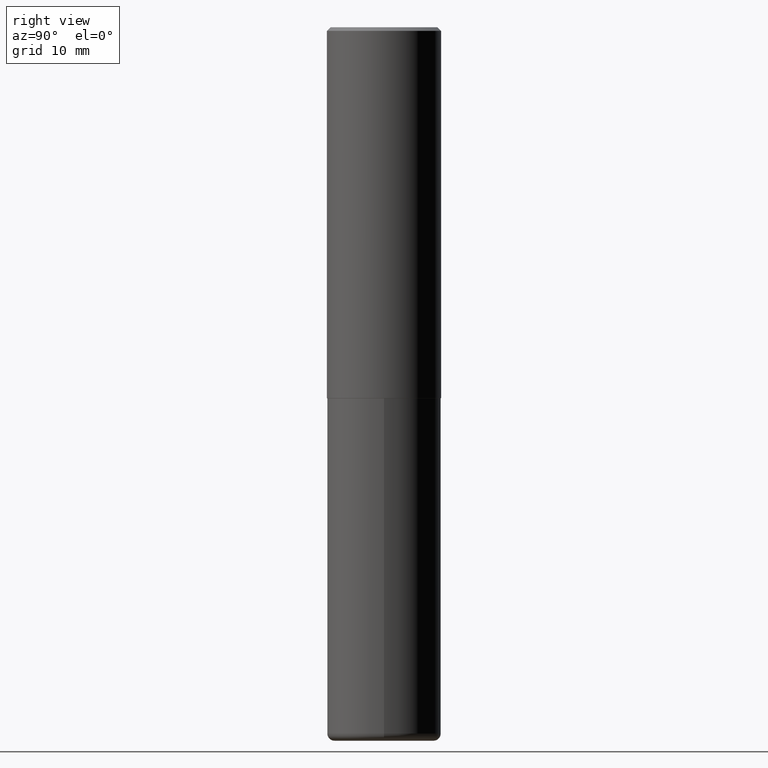
[diagram: clean part render]
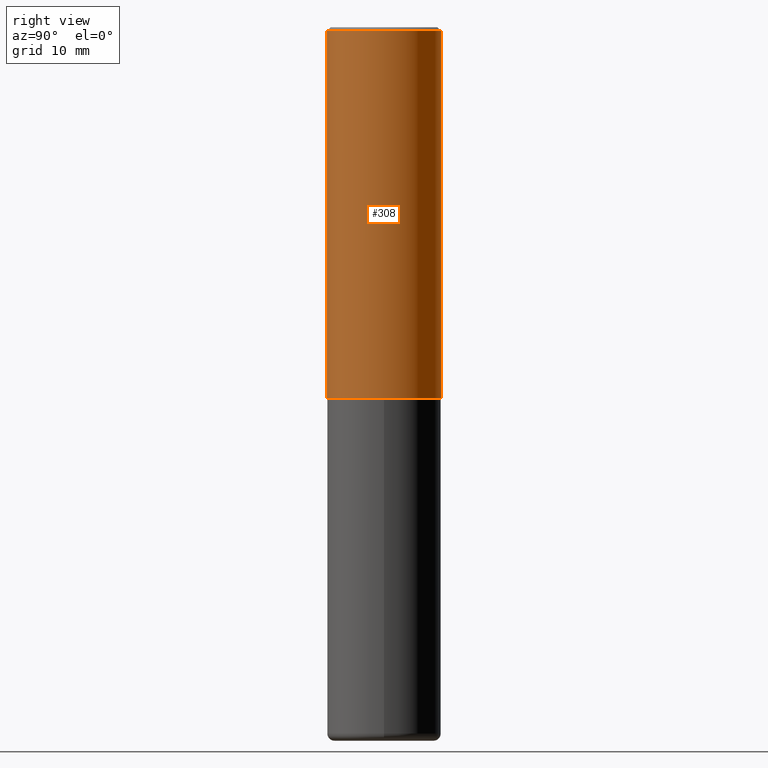
[diagram: same view with one face highlighted and labeled with its STEP entity id]
A machine part, right view. The second image highlights one B-rep face of the part: STEP entity #308.
In plain terms, the highlighted cylindrical surface (partial cylindrical patch) has radius 7.9997 mm, axis along (-0, 0, 1).
Its self-contained STEP definition (entity closure, byte-faithful):
#9 = EDGE_CURVE ( 'NONE', #204, #413, #243, .T. ) ;
#16 = VECTOR ( 'NONE', #164, 39.37007874015748143 ) ;
#17 = VERTEX_POINT ( 'NONE', #262 ) ;
#25 = AXIS2_PLACEMENT_3D ( 'NONE', #269, #339, #172 ) ;
#26 = EDGE_CURVE ( 'NONE', #365, #413, #100, .T. ) ;
#30 = AXIS2_PLACEMENT_3D ( 'NONE', #60, #323, #38 ) ;
#38 = DIRECTION ( 'NONE',  ( -6.982962677686265922E-15, -1.000000000000000000, 3.489337301853966019E-15 ) ) ;
#57 = CARTESIAN_POINT ( 'NONE',  ( 4.893931958425293692E-31, -6.978674603707955407E-17, -0.02000000000000006981 ) ) ;
#58 = FACE_OUTER_BOUND ( 'NONE', #274, .T. ) ;
#60 = CARTESIAN_POINT ( 'NONE',  ( 0.000000000000000000, 0.000000000000000000, 0.000000000000000000 ) ) ;
#82 = CARTESIAN_POINT ( 'NONE',  ( -2.199284095337291449E-15, -0.3149500000000002853, 1.098966783218907654E-15 ) ) ;
#100 = LINE ( 'NONE', #190, #16 ) ;
#109 = CARTESIAN_POINT ( 'NONE',  ( 2.199284095337290660E-15, 0.3149500000000000632, -0.02000000000000116615 ) ) ;
#131 = CIRCLE ( 'NONE', #25, 0.3149500000000003408 ) ;
#132 = DIRECTION ( 'NONE',  ( -2.446965979212638438E-29, 3.489337301853966019E-15, 1.000000000000000000 ) ) ;
#164 = DIRECTION ( 'NONE',  ( -2.446965979212638158E-29, 3.489337301853966019E-15, 1.000000000000000000 ) ) ;
#170 = ORIENTED_EDGE ( 'NONE', *, *, #9, .F. ) ;
#172 = DIRECTION ( 'NONE',  ( -6.982962677686265922E-15, -1.000000000000000000, 3.469564049740289220E-15 ) ) ;
#183 = ORIENTED_EDGE ( 'NONE', *, *, #352, .F. ) ;
#190 = CARTESIAN_POINT ( 'NONE',  ( 2.237854346276437168E-15, 0.3149500000000002853, -1.098966783218907654E-15 ) ) ;
#203 = DIRECTION ( 'NONE',  ( -2.446965979212638158E-29, 3.489337301853966019E-15, 1.000000000000000000 ) ) ;
#204 = VERTEX_POINT ( 'NONE', #417 ) ;
#210 = AXIS2_PLACEMENT_3D ( 'NONE', #57, #132, #383 ) ;
#243 = CIRCLE ( 'NONE', #210, 0.3149500000000001743 ) ;
#259 = VECTOR ( 'NONE', #203, 39.37007874015748143 ) ;
#262 = CARTESIAN_POINT ( 'NONE',  ( -2.199284095337241750E-15, -0.3149500000000075017, -2.046199999999998909 ) ) ;
#269 = CARTESIAN_POINT ( 'NONE',  ( 5.006981786664901703E-29, -7.139881987053586380E-15, -2.046200000000000241 ) ) ;
#274 = EDGE_LOOP ( 'NONE', ( #398, #289, #170, #183 ) ) ;
#275 = CARTESIAN_POINT ( 'NONE',  ( 2.237854346276462412E-15, 0.3149499999999931799, -2.046200000000001129 ) ) ;
#289 = ORIENTED_EDGE ( 'NONE', *, *, #26, .T. ) ;
#308 = ADVANCED_FACE ( 'NONE', ( #58 ), #418, .T. ) ;
#323 = DIRECTION ( 'NONE',  ( -2.446965979212638438E-29, 3.489337301853966019E-15, 1.000000000000000000 ) ) ;
#339 = DIRECTION ( 'NONE',  ( -2.446965979212638438E-29, 3.489337301853966019E-15, 1.000000000000000000 ) ) ;
#352 = EDGE_CURVE ( 'NONE', #17, #204, #372, .T. ) ;
#365 = VERTEX_POINT ( 'NONE', #275 ) ;
#372 = LINE ( 'NONE', #82, #259 ) ;
#383 = DIRECTION ( 'NONE',  ( -6.982962677686264344E-15, -1.000000000000000000, 3.483117034309589160E-15 ) ) ;
#398 = ORIENTED_EDGE ( 'NONE', *, *, #414, .T. ) ;
#413 = VERTEX_POINT ( 'NONE', #109 ) ;
#414 = EDGE_CURVE ( 'NONE', #17, #365, #131, .T. ) ;
#417 = CARTESIAN_POINT ( 'NONE',  ( -2.160713844398144151E-15, -0.3149500000000002298, -0.01999999999999896999 ) ) ;
#418 = CYLINDRICAL_SURFACE ( 'NONE', #30, 0.3149500000000002853 ) ;